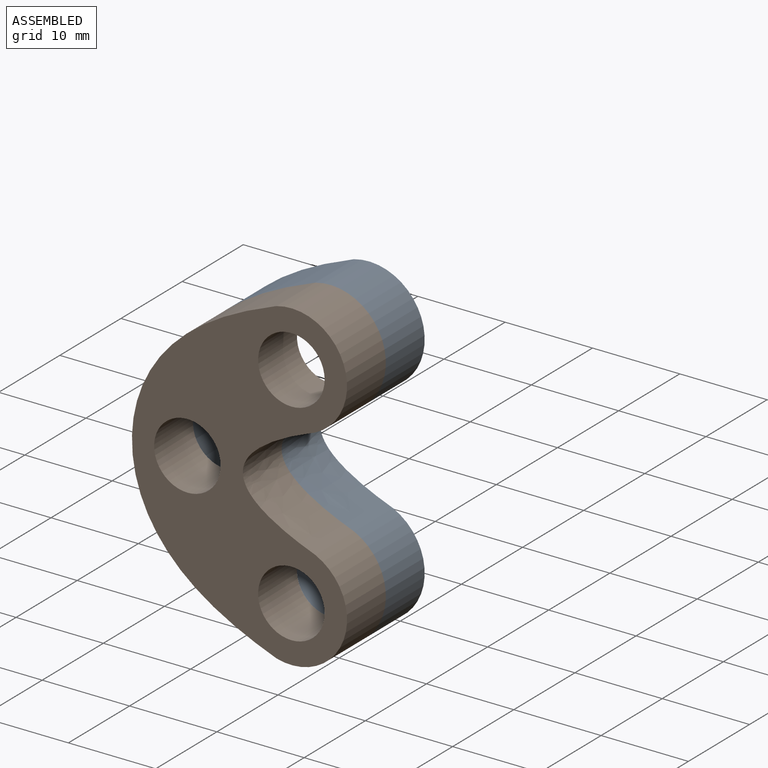
[diagram: assembled view]
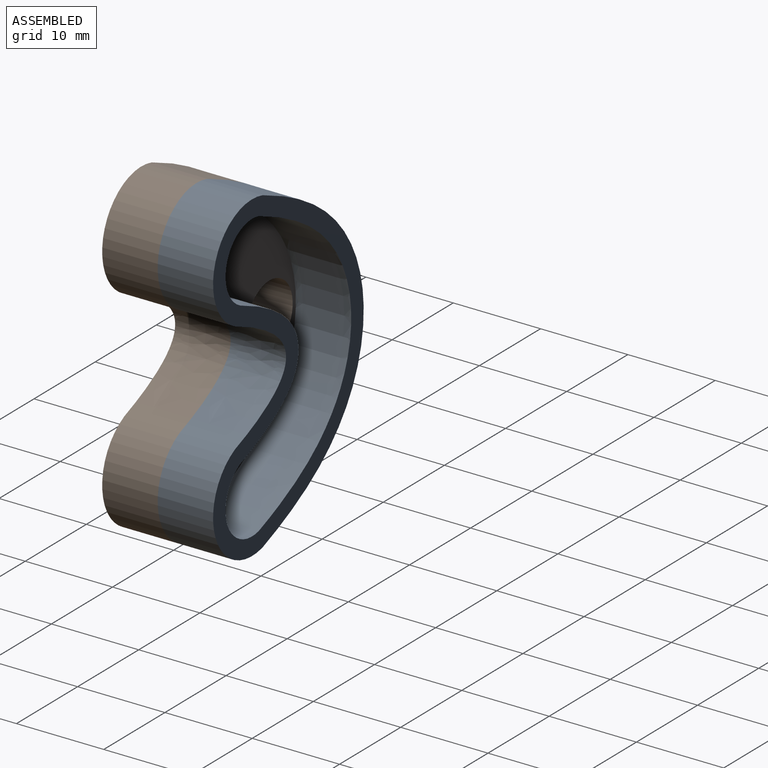
[diagram: assembled view, second angle]
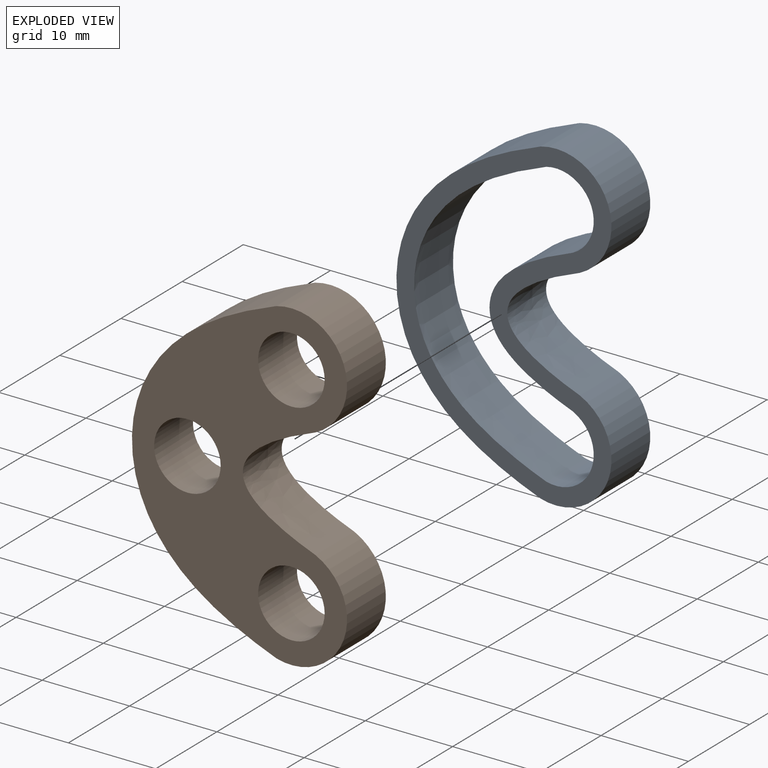
[diagram: exploded view]
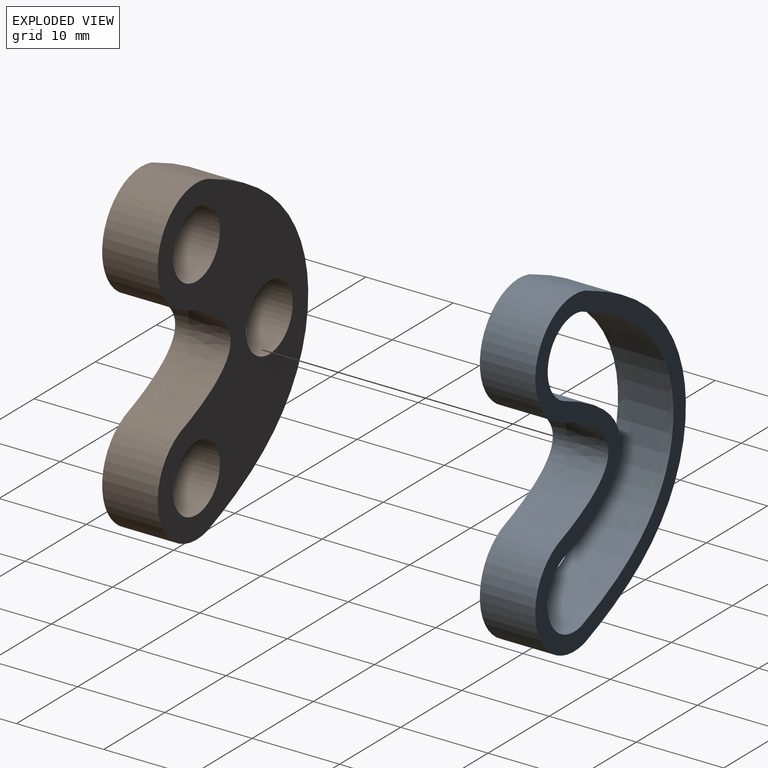
[diagram: exploded view, second angle]
ASSEMBLY  parts=2 mates=2
PART A: 10 faces, bbox 24.6x6.4x36.9 mm
  f0: cylinder r=6.37mm len=12.12mm, axis (0,1,0), area 120mm2, adj f1,f7,f8,f9
  f1: extruded ~36.46x16.54mm, area 334.4mm2, adj f0,f2,f8,f9
  f2: cylinder r=6.37mm len=12.12mm, axis (0,1,0), area 120mm2, adj f1,f7,f8,f9
  f3: extruded ~32.59x15.14mm, area 301.9mm2, adj f4,f6,f8,f9
  f4: cylinder r=4.34mm len=8.22mm, axis (0,1,0), area 80.7mm2, adj f3,f5,f8,f9
  f5: extruded ~16.43x9.55mm, area 169.3mm2, adj f4,f6,f8,f9
  f6: cylinder r=4.34mm len=8.22mm, axis (0,1,0), area 80.7mm2, adj f3,f5,f8,f9
  f7: extruded ~12.7x8.33mm, area 139.3mm2, adj f0,f2,f8,f9
  f8: plane 36.93x24.65mm, normal (0,-1,0), area 215.4mm2, adj f0,f1,f2,f3,f4,f5,f6,f7
  f9: plane 36.93x24.65mm, normal (0,1,0), area 215.4mm2, adj f0,f1,f2,f3,f4,f5,f6,f7
PART B: 9 faces, bbox 24.6x6.4x36.9 mm
  f0: cylinder r=6.37mm len=12.12mm, axis (0,1,0), area 120mm2, adj f1,f3,f4,f5
  f1: extruded ~36.46x16.54mm, area 334.4mm2, adj f0,f2,f4,f5
  f2: cylinder r=6.37mm len=12.12mm, axis (0,1,0), area 120mm2, adj f1,f3,f4,f5
  f3: extruded ~12.7x8.33mm, area 139.3mm2, adj f0,f2,f4,f5
  f4: plane 36.93x24.65mm, normal (0,-1,0), area 450.2mm2, adj f0,f1,f2,f3,f6,f7,f8
  f5: plane 36.93x24.65mm, normal (0,1,0), area 450.2mm2, adj f0,f1,f2,f3,f6,f7,f8
  f6: cylinder r=3.81mm len=7.62mm, axis (0,-1,0), area 152mm2, adj f4,f5
  f7: cylinder r=3.81mm len=7.62mm, axis (0,-1,0), area 152mm2, adj f4,f5
  f8: cylinder r=3.81mm len=7.62mm, axis (0,-1,0), area 152mm2, adj f4,f5
PLACE A t=(0.85,7.63,-27.65)mm
PLACE B t=(0.85,1.28,-27.65)mm
MATE planar A.f8 <-> B.f5  axis (0,-1,0) through (-3.64,1.28,-9.42)mm
MATE cylindrical B.f0 <-> A.f0  axis (0,1,0) through (-1.92,1.28,-15.56)mm
